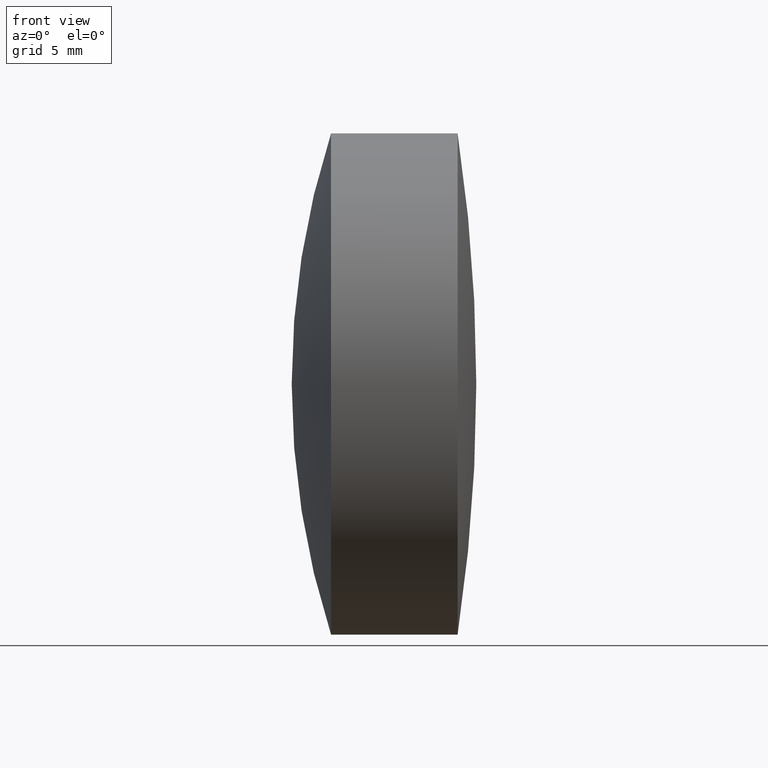
[diagram: clean part render]
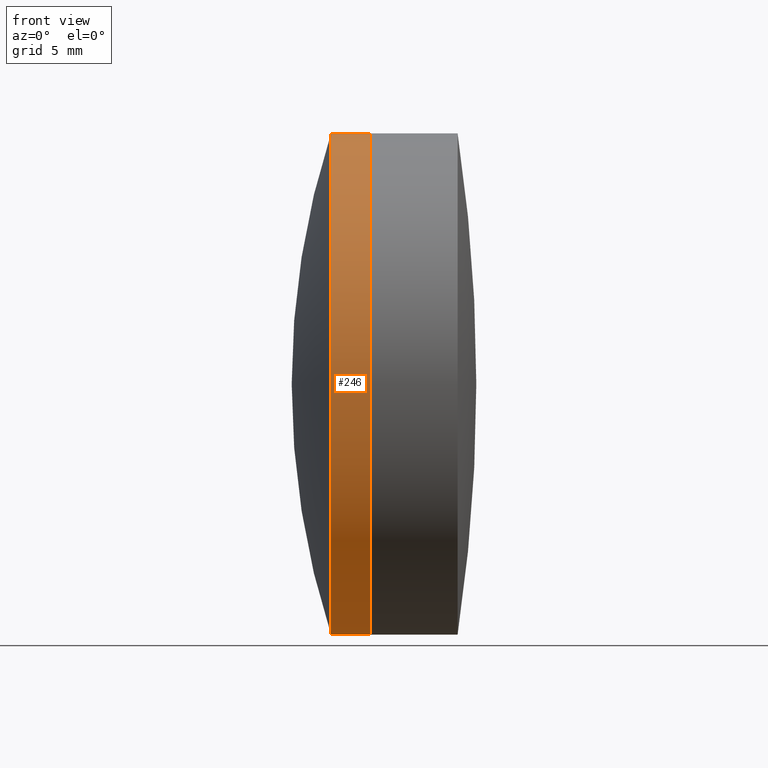
[diagram: same view with one face highlighted and labeled with its STEP entity id]
A machine part, front view. The second image highlights one B-rep face of the part: STEP entity #246.
In plain terms, the highlighted cylindrical surface (partial cylindrical patch) has radius 12.5 mm, axis along (-1, -0, -0).
Its self-contained STEP definition (entity closure, byte-faithful):
#1 = EDGE_CURVE ( 'NONE', #179, #344, #78, .T. ) ;
#6 = CARTESIAN_POINT ( 'NONE',  ( 41.56290633338549200, 1.530808498934191500E-015, -12.50000000000000000 ) ) ;
#16 = FACE_OUTER_BOUND ( 'NONE', #302, .T. ) ;
#48 = DIRECTION ( 'NONE',  ( -1.000000000000000000, -0.0000000000000000000, -0.0000000000000000000 ) ) ;
#58 = AXIS2_PLACEMENT_3D ( 'NONE', #229, #48, #206 ) ;
#59 = CARTESIAN_POINT ( 'NONE',  ( 41.56290633338549200, 0.0000000000000000000, 12.50000000000000000 ) ) ;
#72 = EDGE_CURVE ( 'NONE', #344, #224, #256, .T. ) ;
#78 = LINE ( 'NONE', #230, #320 ) ;
#82 = DIRECTION ( 'NONE',  ( -1.000000000000000000, -0.0000000000000000000, -0.0000000000000000000 ) ) ;
#88 = DIRECTION ( 'NONE',  ( -1.000000000000000000, -0.0000000000000000000, -0.0000000000000000000 ) ) ;
#101 = EDGE_CURVE ( 'NONE', #179, #184, #180, .T. ) ;
#116 = DIRECTION ( 'NONE',  ( -1.000000000000000000, -0.0000000000000000000, -0.0000000000000000000 ) ) ;
#120 = DIRECTION ( 'NONE',  ( -1.000000000000000000, -0.0000000000000000000, -0.0000000000000000000 ) ) ;
#135 = AXIS2_PLACEMENT_3D ( 'NONE', #198, #116, #274 ) ;
#146 = ORIENTED_EDGE ( 'NONE', *, *, #1, .F. ) ;
#179 = VERTEX_POINT ( 'NONE', #6 ) ;
#180 = CIRCLE ( 'NONE', #341, 12.50000000000000000 ) ;
#184 = VERTEX_POINT ( 'NONE', #59 ) ;
#198 = CARTESIAN_POINT ( 'NONE',  ( -9.702612178336682500, 0.0000000000000000000, 0.0000000000000000000 ) ) ;
#206 = DIRECTION ( 'NONE',  ( 0.0000000000000000000, 0.0000000000000000000, 1.000000000000000000 ) ) ;
#208 = LINE ( 'NONE', #265, #304 ) ;
#224 = VERTEX_POINT ( 'NONE', #272 ) ;
#225 = ORIENTED_EDGE ( 'NONE', *, *, #72, .F. ) ;
#229 = CARTESIAN_POINT ( 'NONE',  ( 39.61858186426729100, 0.0000000000000000000, 0.0000000000000000000 ) ) ;
#230 = CARTESIAN_POINT ( 'NONE',  ( -9.702612178336682500, 1.530808498934191500E-015, -12.50000000000000000 ) ) ;
#235 = ORIENTED_EDGE ( 'NONE', *, *, #288, .T. ) ;
#241 = DIRECTION ( 'NONE',  ( 0.0000000000000000000, 0.0000000000000000000, 1.000000000000000000 ) ) ;
#246 = ADVANCED_FACE ( 'NONE', ( #16 ), #286, .T. ) ;
#256 = CIRCLE ( 'NONE', #58, 12.50000000000000000 ) ;
#265 = CARTESIAN_POINT ( 'NONE',  ( -9.702612178336682500, 0.0000000000000000000, 12.50000000000000000 ) ) ;
#269 = CARTESIAN_POINT ( 'NONE',  ( 41.56290633338549200, 0.0000000000000000000, 0.0000000000000000000 ) ) ;
#272 = CARTESIAN_POINT ( 'NONE',  ( 39.61858186426729100, -1.530808498934191700E-015, 12.50000000000000200 ) ) ;
#273 = ORIENTED_EDGE ( 'NONE', *, *, #101, .T. ) ;
#274 = DIRECTION ( 'NONE',  ( 0.0000000000000000000, 0.0000000000000000000, 1.000000000000000000 ) ) ;
#286 = CYLINDRICAL_SURFACE ( 'NONE', #135, 12.50000000000000000 ) ;
#288 = EDGE_CURVE ( 'NONE', #184, #224, #208, .T. ) ;
#302 = EDGE_LOOP ( 'NONE', ( #146, #273, #235, #225 ) ) ;
#304 = VECTOR ( 'NONE', #88, 1000.000000000000000 ) ;
#320 = VECTOR ( 'NONE', #82, 1000.000000000000000 ) ;
#326 = CARTESIAN_POINT ( 'NONE',  ( 39.61858186426729100, 0.0000000000000000000, -12.50000000000000200 ) ) ;
#341 = AXIS2_PLACEMENT_3D ( 'NONE', #269, #120, #241 ) ;
#344 = VERTEX_POINT ( 'NONE', #326 ) ;